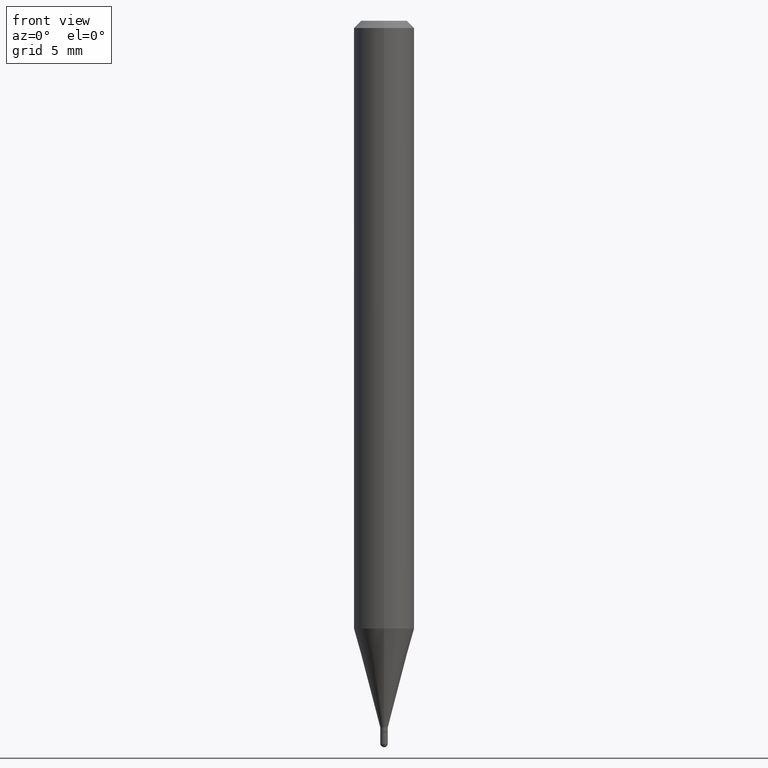
[diagram: clean part render]
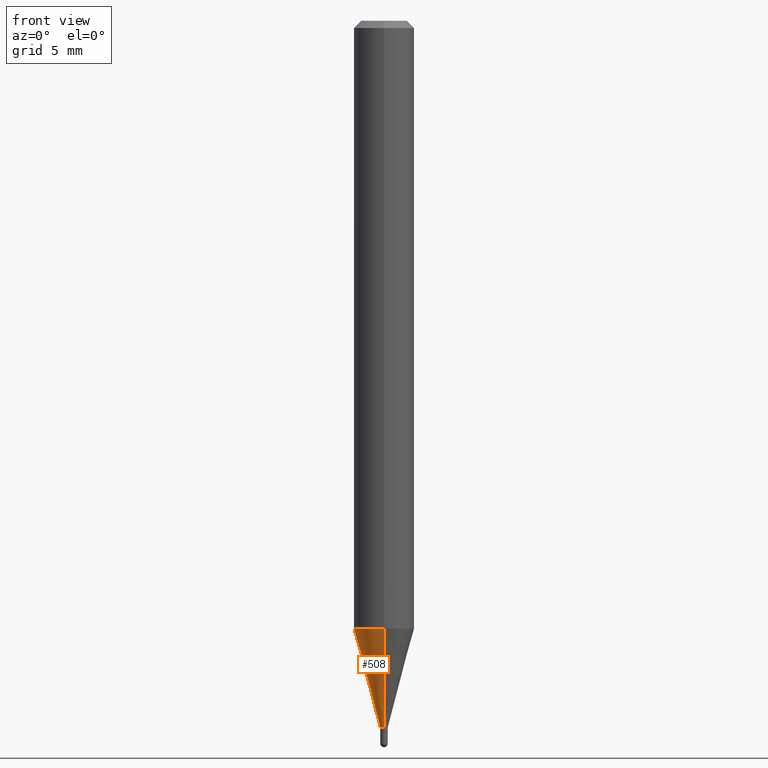
[diagram: same view with one face highlighted and labeled with its STEP entity id]
A machine part, front view. The second image highlights one B-rep face of the part: STEP entity #508.
In plain terms, the highlighted conical surface has half-angle 15 deg.
Its self-contained STEP definition (entity closure, byte-faithful):
#10 = ORIENTED_EDGE ( 'NONE', *, *, #42, .T. ) ;
#13 = CARTESIAN_POINT ( 'NONE',  ( 3.070943768617102589E-29, -4.378114888170739997E-15, -1.254856820825982044 ) ) ;
#27 = AXIS2_PLACEMENT_3D ( 'NONE', #502, #209, #282 ) ;
#42 = EDGE_CURVE ( 'NONE', #373, #245, #341, .T. ) ;
#44 = CARTESIAN_POINT ( 'NONE',  ( 3.570532417764727105E-29, -5.090357334661150945E-15, -1.459000000000000297 ) ) ;
#54 = LINE ( 'NONE', #366, #266 ) ;
#81 = CARTESIAN_POINT ( 'NONE',  ( 2.497557716197072184E-16, 0.007799999999994547406, -1.459000000000000297 ) ) ;
#91 = ORIENTED_EDGE ( 'NONE', *, *, #352, .F. ) ;
#115 = AXIS2_PLACEMENT_3D ( 'NONE', #13, #316, #122 ) ;
#122 = DIRECTION ( 'NONE',  ( -6.982962677686265922E-15, -1.000000000000000000, 4.370956789862821150E-15 ) ) ;
#126 = CIRCLE ( 'NONE', #27, 0.007799999999999637952 ) ;
#159 = ORIENTED_EDGE ( 'NONE', *, *, #310, .F. ) ;
#167 = DIRECTION ( 'NONE',  ( 1.839019923739600710E-15, 0.2588190451025250138, 0.9659258262890670910 ) ) ;
#173 = VERTEX_POINT ( 'NONE', #81 ) ;
#181 = CARTESIAN_POINT ( 'NONE',  ( -4.364351673553609038E-16, -0.06250000000000437150, -1.254856820825981822 ) ) ;
#201 = EDGE_CURVE ( 'NONE', #173, #373, #126, .T. ) ;
#209 = DIRECTION ( 'NONE',  ( -2.447246345280827304E-29, 3.488935801686874341E-15, 1.000000000000000000 ) ) ;
#232 = VERTEX_POINT ( 'NONE', #256 ) ;
#245 = VERTEX_POINT ( 'NONE', #181 ) ;
#256 = CARTESIAN_POINT ( 'NONE',  ( 4.440892098500930859E-16, 0.06249999999999560074, -1.254856820825982266 ) ) ;
#266 = VECTOR ( 'NONE', #167, 39.37007874015748143 ) ;
#282 = DIRECTION ( 'NONE',  ( -6.982962677686265922E-15, -1.000000000000000000, 0.000000000000000000 ) ) ;
#310 = EDGE_CURVE ( 'NONE', #232, #245, #429, .T. ) ;
#316 = DIRECTION ( 'NONE',  ( -2.447246345280827304E-29, 3.488935801686874341E-15, 1.000000000000000000 ) ) ;
#323 = CARTESIAN_POINT ( 'NONE',  ( -5.446710888591464223E-17, -0.007800000000004727631, -1.459000000000000297 ) ) ;
#341 = LINE ( 'NONE', #503, #480 ) ;
#352 = EDGE_CURVE ( 'NONE', #173, #232, #54, .T. ) ;
#357 = FACE_OUTER_BOUND ( 'NONE', #468, .T. ) ;
#366 = CARTESIAN_POINT ( 'NONE',  ( 5.542233338932093795E-17, 0.007799999999994547406, -1.459000000000000297 ) ) ;
#373 = VERTEX_POINT ( 'NONE', #323 ) ;
#396 = CONICAL_SURFACE ( 'NONE', #464, 0.007799999999999637952, 0.2617993877991502960 ) ;
#412 = ORIENTED_EDGE ( 'NONE', *, *, #201, .T. ) ;
#425 = DIRECTION ( 'NONE',  ( -1.807323732225330534E-15, -0.2588190451025182415, 0.9659258262890689783 ) ) ;
#429 = CIRCLE ( 'NONE', #115, 0.06250000000000000000 ) ;
#440 = DIRECTION ( 'NONE',  ( -6.982962677686265922E-15, -1.000000000000000000, 0.000000000000000000 ) ) ;
#464 = AXIS2_PLACEMENT_3D ( 'NONE', #44, #485, #440 ) ;
#468 = EDGE_LOOP ( 'NONE', ( #91, #412, #10, #159 ) ) ;
#480 = VECTOR ( 'NONE', #425, 39.37007874015748143 ) ;
#485 = DIRECTION ( 'NONE',  ( -2.447246345280827304E-29, 3.488935801686874341E-15, 1.000000000000000000 ) ) ;
#502 = CARTESIAN_POINT ( 'NONE',  ( 3.570532417764727105E-29, -5.090357334661150945E-15, -1.459000000000000297 ) ) ;
#503 = CARTESIAN_POINT ( 'NONE',  ( -5.446710888591464223E-17, -0.007800000000004727631, -1.459000000000000297 ) ) ;
#508 = ADVANCED_FACE ( 'NONE', ( #357 ), #396, .T. ) ;